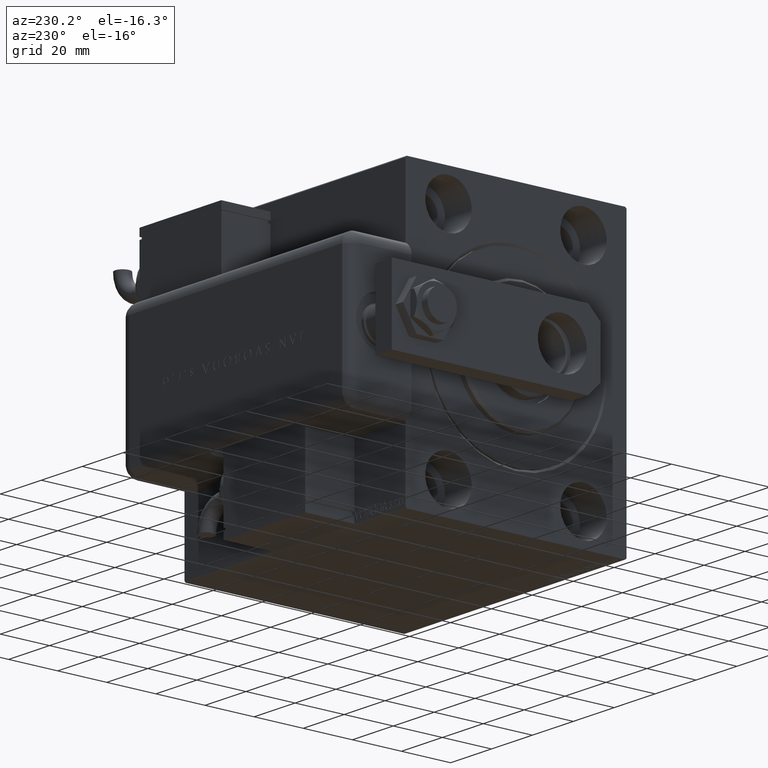
[diagram: clean part render]
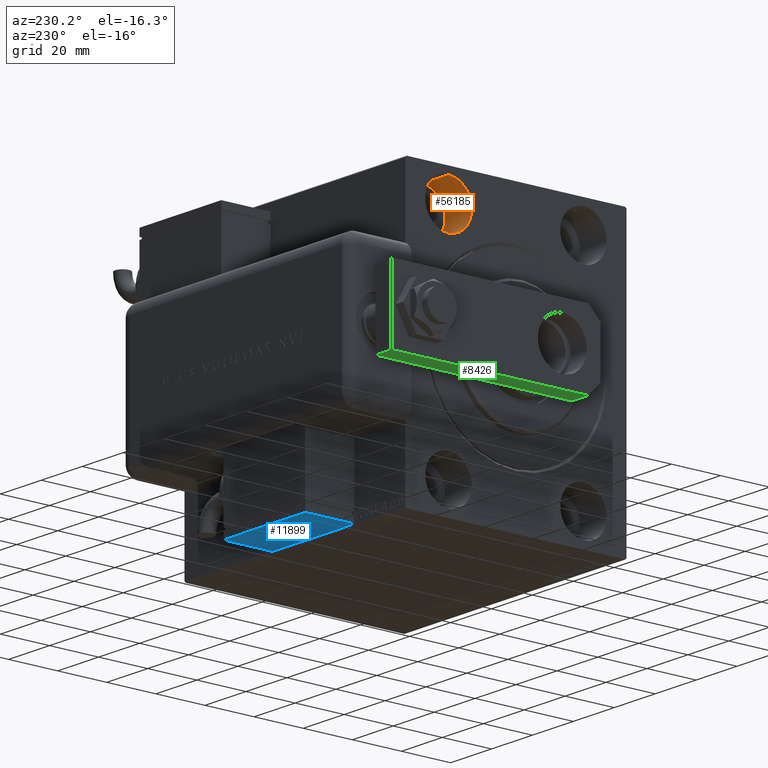
[diagram: same view with three faces highlighted in distinct colors, each labeled with its STEP entity id]
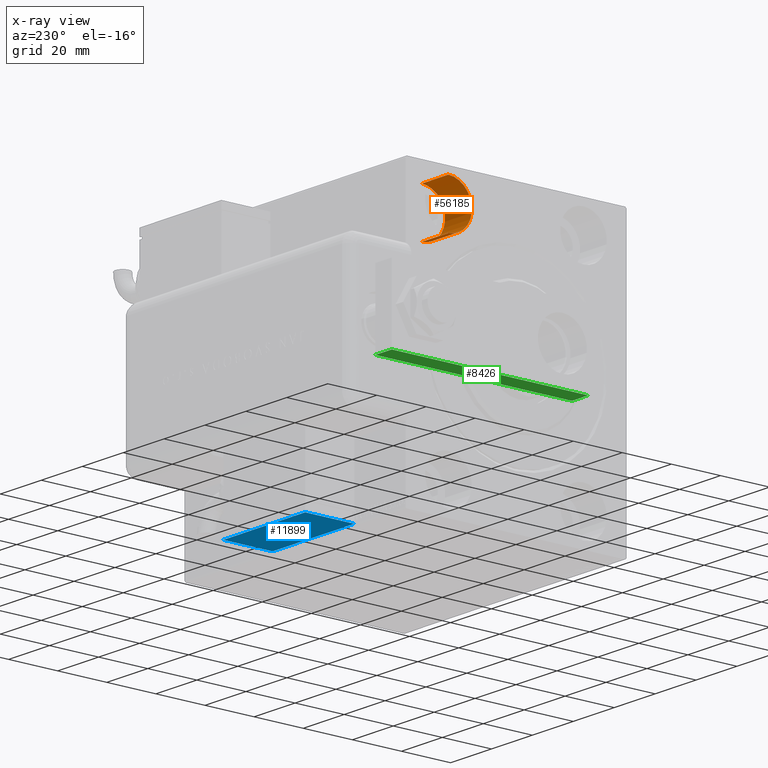
[diagram: x-ray of the same camera — body ghosted, the three highlighted faces saturated]
A machine part, auxiliary view with three faces highlighted in distinct colors.
The next image is the same camera in x-ray (body ghosted, the three faces saturated) — at least one of them is partly hidden behind the body in this view.
Their STEP definitions:

[orange] entity #56185 — the highlighted cylindrical surface (edge-blend (fillet) strip) has radius 9.5 mm, axis along (-1, -0, -0).
#100 = ORIENTED_EDGE ( 'NONE', *, *, #29722, .T. ) ;
#3280 = FACE_OUTER_BOUND ( 'NONE', #19004, .T. ) ;
#3951 = CARTESIAN_POINT ( 'NONE',  ( 0.000000000000000000, 27.50000000000001066, 45.00000000000000711 ) ) ;
#4686 = DIRECTION ( 'NONE',  ( -1.000000000000000000, 0.000000000000000000, 0.000000000000000000 ) ) ;
#4969 = LINE ( 'NONE', #31502, #48626 ) ;
#5404 = AXIS2_PLACEMENT_3D ( 'NONE', #3951, #59079, #13576 ) ;
#6558 = DIRECTION ( 'NONE',  ( -1.000000000000000000, -0.000000000000000000, -0.000000000000000000 ) ) ;
#13546 = CARTESIAN_POINT ( 'NONE',  ( 0.000000000000000000, 27.50000000000001066, 54.50000000000000711 ) ) ;
#13576 = DIRECTION ( 'NONE',  ( 0.000000000000000000, 0.000000000000000000, 1.000000000000000000 ) ) ;
#13675 = EDGE_CURVE ( 'NONE', #40920, #54305, #20694, .T. ) ;
#17475 = AXIS2_PLACEMENT_3D ( 'NONE', #53899, #21643, #25570 ) ;
#17721 = ORIENTED_EDGE ( 'NONE', *, *, #13675, .F. ) ;
#19004 = EDGE_LOOP ( 'NONE', ( #27887, #100, #33812, #17721 ) ) ;
#20694 = LINE ( 'NONE', #39375, #44520 ) ;
#21643 = DIRECTION ( 'NONE',  ( -1.000000000000000000, -0.000000000000000000, -0.000000000000000000 ) ) ;
#22931 = CIRCLE ( 'NONE', #56624, 9.500000000000001776 ) ;
#23624 = DIRECTION ( 'NONE',  ( 0.000000000000000000, 0.000000000000000000, 1.000000000000000000 ) ) ;
#25570 = DIRECTION ( 'NONE',  ( 0.000000000000000000, 0.000000000000000000, 1.000000000000000000 ) ) ;
#26019 = CARTESIAN_POINT ( 'NONE',  ( 13.00000000000000000, 27.50000000000001066, 35.50000000000000711 ) ) ;
#27325 = CARTESIAN_POINT ( 'NONE',  ( 13.00000000000000000, 27.50000000000001066, 54.50000000000000711 ) ) ;
#27887 = ORIENTED_EDGE ( 'NONE', *, *, #45520, .F. ) ;
#28418 = EDGE_CURVE ( 'NONE', #47788, #54305, #54497, .T. ) ;
#29722 = EDGE_CURVE ( 'NONE', #36229, #47788, #4969, .T. ) ;
#31502 = CARTESIAN_POINT ( 'NONE',  ( 13.00000000000000000, 27.50000000000001066, 35.50000000000000711 ) ) ;
#32392 = DIRECTION ( 'NONE',  ( -1.000000000000000000, -0.000000000000000000, -0.000000000000000000 ) ) ;
#33812 = ORIENTED_EDGE ( 'NONE', *, *, #28418, .T. ) ;
#36229 = VERTEX_POINT ( 'NONE', #26019 ) ;
#37794 = CARTESIAN_POINT ( 'NONE',  ( 13.00000000000000000, 27.50000000000001066, 45.00000000000000711 ) ) ;
#39375 = CARTESIAN_POINT ( 'NONE',  ( 13.00000000000000000, 27.50000000000001066, 54.50000000000000711 ) ) ;
#40338 = CYLINDRICAL_SURFACE ( 'NONE', #17475, 9.500000000000001776 ) ;
#40920 = VERTEX_POINT ( 'NONE', #27325 ) ;
#44520 = VECTOR ( 'NONE', #6558, 1000.000000000000000 ) ;
#45520 = EDGE_CURVE ( 'NONE', #36229, #40920, #22931, .T. ) ;
#47788 = VERTEX_POINT ( 'NONE', #55613 ) ;
#48626 = VECTOR ( 'NONE', #32392, 1000.000000000000000 ) ;
#53899 = CARTESIAN_POINT ( 'NONE',  ( 13.00000000000000000, 27.50000000000001066, 45.00000000000000711 ) ) ;
#54305 = VERTEX_POINT ( 'NONE', #13546 ) ;
#54497 = CIRCLE ( 'NONE', #5404, 9.500000000000001776 ) ;
#55613 = CARTESIAN_POINT ( 'NONE',  ( 0.000000000000000000, 27.50000000000001066, 35.50000000000000711 ) ) ;
#56185 = ADVANCED_FACE ( 'NONE', ( #3280 ), #40338, .F. ) ;
#56624 = AXIS2_PLACEMENT_3D ( 'NONE', #37794, #4686, #23624 ) ;
#59079 = DIRECTION ( 'NONE',  ( -1.000000000000000000, 0.000000000000000000, 0.000000000000000000 ) ) ;

[blue] entity #11899 — the highlighted planar face has unit normal (0, 0, 1).
#40 = LINE ( 'NONE', #56355, #8373 ) ;
#622 = CARTESIAN_POINT ( 'NONE',  ( -19.99999999999994316, -17.49999999999996092, 10.00000000000000000 ) ) ;
#1515 = CARTESIAN_POINT ( 'NONE',  ( -19.99999999999994316, -17.49999999999996092, -9.999999999999998224 ) ) ;
#3119 = DIRECTION ( 'NONE',  ( 1.000000000000000000, 0.000000000000000000, 0.000000000000000000 ) ) ;
#3963 = CARTESIAN_POINT ( 'NONE',  ( 0.000000000000000000, -17.49999999999996092, 0.000000000000000000 ) ) ;
#5989 = AXIS2_PLACEMENT_3D ( 'NONE', #3963, #8478, #31077 ) ;
#6093 = CARTESIAN_POINT ( 'NONE',  ( -19.99999999999994316, -17.49999999999996092, -9.999999999999998224 ) ) ;
#6580 = CARTESIAN_POINT ( 'NONE',  ( 20.00000000000005329, -17.49999999999996092, 10.00000000000000000 ) ) ;
#8373 = VECTOR ( 'NONE', #55765, 1000.000000000000000 ) ;
#8478 = DIRECTION ( 'NONE',  ( 0.000000000000000000, 1.000000000000000000, 0.000000000000000000 ) ) ;
#10798 = VECTOR ( 'NONE', #35931, 1000.000000000000000 ) ;
#11899 = ADVANCED_FACE ( 'NONE', ( #31975 ), #26260, .F. ) ;
#13384 = CARTESIAN_POINT ( 'NONE',  ( 20.00000000000005329, -17.49999999999996092, -9.999999999999998224 ) ) ;
#15130 = LINE ( 'NONE', #6093, #53690 ) ;
#16399 = VERTEX_POINT ( 'NONE', #13384 ) ;
#17360 = EDGE_CURVE ( 'NONE', #16399, #51186, #26587, .T. ) ;
#18117 = ORIENTED_EDGE ( 'NONE', *, *, #40422, .T. ) ;
#22383 = CARTESIAN_POINT ( 'NONE',  ( -19.99999999999994316, -17.49999999999996092, -9.999999999999998224 ) ) ;
#25185 = ORIENTED_EDGE ( 'NONE', *, *, #46874, .T. ) ;
#26260 = PLANE ( 'NONE',  #5989 ) ;
#26587 = LINE ( 'NONE', #45561, #10798 ) ;
#30523 = LINE ( 'NONE', #22383, #47838 ) ;
#31077 = DIRECTION ( 'NONE',  ( 0.000000000000000000, -0.000000000000000000, 1.000000000000000000 ) ) ;
#31975 = FACE_OUTER_BOUND ( 'NONE', #44817, .T. ) ;
#34155 = VERTEX_POINT ( 'NONE', #1515 ) ;
#35931 = DIRECTION ( 'NONE',  ( 0.000000000000000000, 0.000000000000000000, 1.000000000000000000 ) ) ;
#38033 = ORIENTED_EDGE ( 'NONE', *, *, #45721, .T. ) ;
#38918 = DIRECTION ( 'NONE',  ( -0.000000000000000000, -0.000000000000000000, -1.000000000000000000 ) ) ;
#40422 = EDGE_CURVE ( 'NONE', #51186, #54096, #40, .T. ) ;
#44817 = EDGE_LOOP ( 'NONE', ( #50656, #18117, #25185, #38033 ) ) ;
#45561 = CARTESIAN_POINT ( 'NONE',  ( 20.00000000000005329, -17.49999999999996092, -9.999999999999998224 ) ) ;
#45721 = EDGE_CURVE ( 'NONE', #34155, #16399, #30523, .T. ) ;
#46874 = EDGE_CURVE ( 'NONE', #54096, #34155, #15130, .T. ) ;
#47838 = VECTOR ( 'NONE', #3119, 1000.000000000000000 ) ;
#50656 = ORIENTED_EDGE ( 'NONE', *, *, #17360, .T. ) ;
#51186 = VERTEX_POINT ( 'NONE', #6580 ) ;
#53690 = VECTOR ( 'NONE', #38918, 1000.000000000000000 ) ;
#54096 = VERTEX_POINT ( 'NONE', #622 ) ;
#55765 = DIRECTION ( 'NONE',  ( -1.000000000000000000, -0.000000000000000000, -0.000000000000000000 ) ) ;
#56355 = CARTESIAN_POINT ( 'NONE',  ( -19.99999999999994316, -17.49999999999996092, 10.00000000000000000 ) ) ;

[green] entity #8426 — the highlighted planar face has unit normal (0, -0, 1).
#3130 = EDGE_CURVE ( 'NONE', #55873, #9890, #16713, .T. ) ;
#5225 = DIRECTION ( 'NONE',  ( -8.163404592832032733E-17, 1.000000000000000000, 0.000000000000000000 ) ) ;
#5833 = DIRECTION ( 'NONE',  ( -8.163404592832032733E-17, 1.000000000000000000, 0.000000000000000000 ) ) ;
#6440 = DIRECTION ( 'NONE',  ( -1.000000000000000000, -8.163404592832032733E-17, 0.000000000000000000 ) ) ;
#6733 = CARTESIAN_POINT ( 'NONE',  ( 15.00000000000000888, 9.629649721936179265E-32, 8.000000000000000000 ) ) ;
#8237 = EDGE_CURVE ( 'NONE', #9890, #43542, #46494, .T. ) ;
#8426 = ADVANCED_FACE ( 'NONE', ( #20865 ), #33548, .F. ) ;
#9096 = ORIENTED_EDGE ( 'NONE', *, *, #14951, .F. ) ;
#9890 = VERTEX_POINT ( 'NONE', #20068 ) ;
#10490 = VERTEX_POINT ( 'NONE', #57589 ) ;
#10895 = EDGE_CURVE ( 'NONE', #10490, #43542, #38023, .T. ) ;
#12491 = CARTESIAN_POINT ( 'NONE',  ( 15.00000000000000888, 4.999999999999990230, 8.000000000000000000 ) ) ;
#14951 = EDGE_CURVE ( 'NONE', #55873, #10490, #15471, .T. ) ;
#15471 = LINE ( 'NONE', #6733, #30921 ) ;
#16713 = LINE ( 'NONE', #12491, #22927 ) ;
#18742 = DIRECTION ( 'NONE',  ( -0.000000000000000000, -0.000000000000000000, -1.000000000000000000 ) ) ;
#20068 = CARTESIAN_POINT ( 'NONE',  ( 15.00000000000000888, 4.999999999999990230, 0.000000000000000000 ) ) ;
#20865 = FACE_OUTER_BOUND ( 'NONE', #43261, .T. ) ;
#22204 = AXIS2_PLACEMENT_3D ( 'NONE', #47710, #6440, #53129 ) ;
#22286 = VECTOR ( 'NONE', #18742, 1000.000000000000000 ) ;
#22927 = VECTOR ( 'NONE', #58593, 1000.000000000000000 ) ;
#28398 = CARTESIAN_POINT ( 'NONE',  ( 15.00000000000000888, 9.629649721936179265E-32, 0.000000000000000000 ) ) ;
#30844 = VECTOR ( 'NONE', #5225, 1000.000000000000000 ) ;
#30921 = VECTOR ( 'NONE', #5833, 1000.000000000000000 ) ;
#31379 = ORIENTED_EDGE ( 'NONE', *, *, #3130, .T. ) ;
#33394 = ORIENTED_EDGE ( 'NONE', *, *, #10895, .F. ) ;
#33493 = CARTESIAN_POINT ( 'NONE',  ( 15.00000000000000888, 4.999999999999990230, 8.000000000000000000 ) ) ;
#33548 = PLANE ( 'NONE',  #22204 ) ;
#38023 = LINE ( 'NONE', #56406, #22286 ) ;
#43261 = EDGE_LOOP ( 'NONE', ( #9096, #31379, #46175, #33394 ) ) ;
#43542 = VERTEX_POINT ( 'NONE', #51784 ) ;
#46175 = ORIENTED_EDGE ( 'NONE', *, *, #8237, .T. ) ;
#46494 = LINE ( 'NONE', #28398, #30844 ) ;
#47710 = CARTESIAN_POINT ( 'NONE',  ( 15.00000000000000888, 9.629649721936179265E-32, 8.000000000000000000 ) ) ;
#51784 = CARTESIAN_POINT ( 'NONE',  ( 15.00000000000000178, 85.00000000000000000, 0.000000000000000000 ) ) ;
#53129 = DIRECTION ( 'NONE',  ( 8.163404592832032733E-17, -1.000000000000000000, 0.000000000000000000 ) ) ;
#55873 = VERTEX_POINT ( 'NONE', #33493 ) ;
#56406 = CARTESIAN_POINT ( 'NONE',  ( 15.00000000000000178, 85.00000000000000000, 8.000000000000000000 ) ) ;
#57589 = CARTESIAN_POINT ( 'NONE',  ( 15.00000000000000178, 85.00000000000000000, 8.000000000000000000 ) ) ;
#58593 = DIRECTION ( 'NONE',  ( 0.000000000000000000, 0.000000000000000000, -1.000000000000000000 ) ) ;